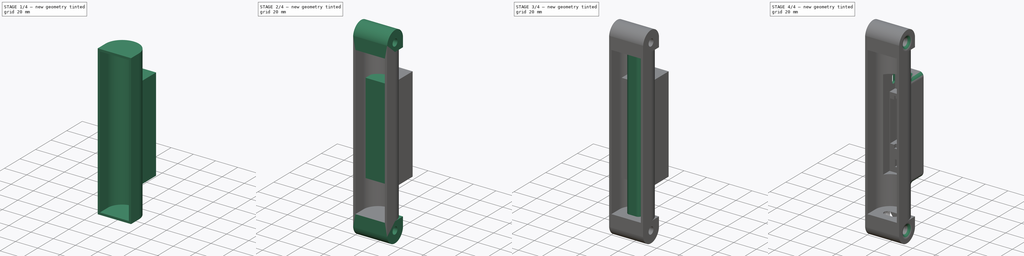
[diagram: build sequence overview — one tinted view per stage of 4, left to right]
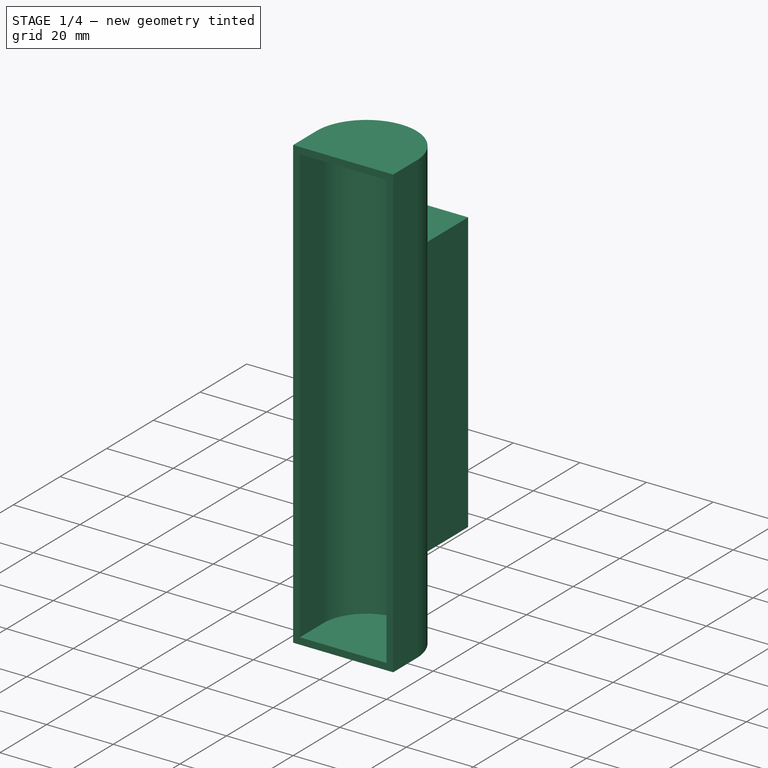
[diagram: stage 1 of 4 — iso view after this stage's code; geometry added in this stage tinted green]
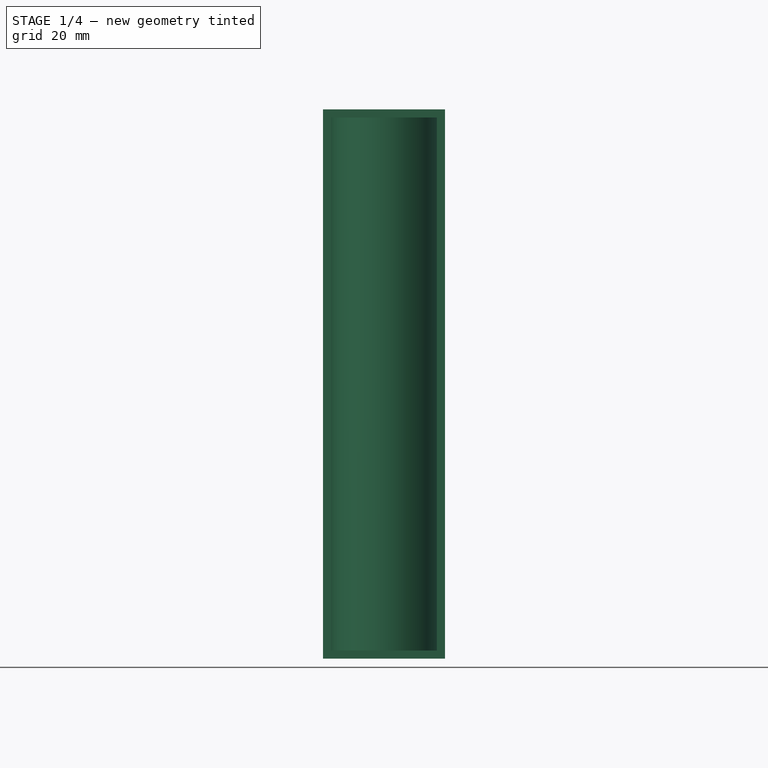
[diagram: stage 1 of 4 — front view after this stage's code; geometry added in this stage tinted green]
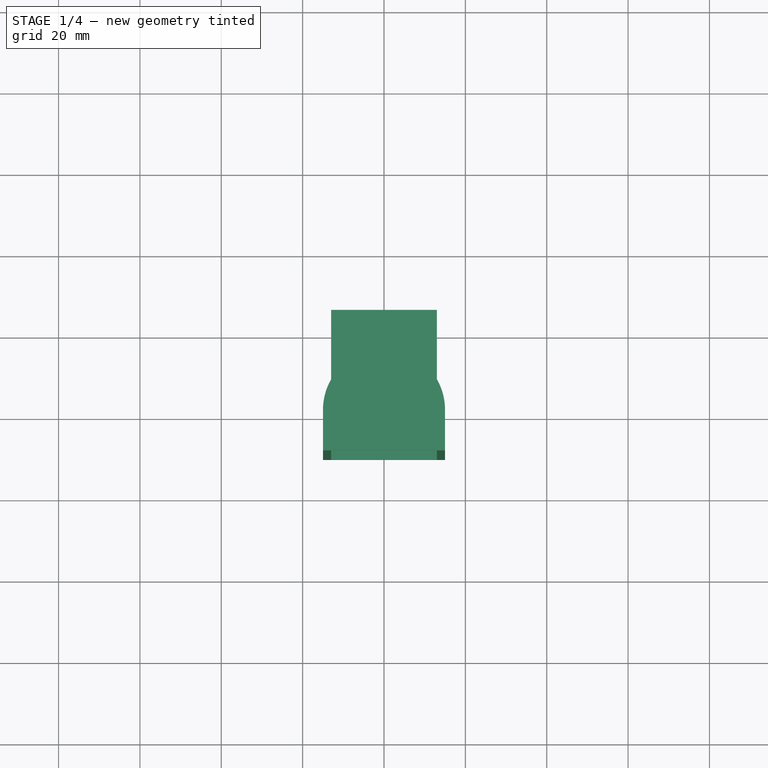
[diagram: stage 1 of 4 — top view after this stage's code; geometry added in this stage tinted green]
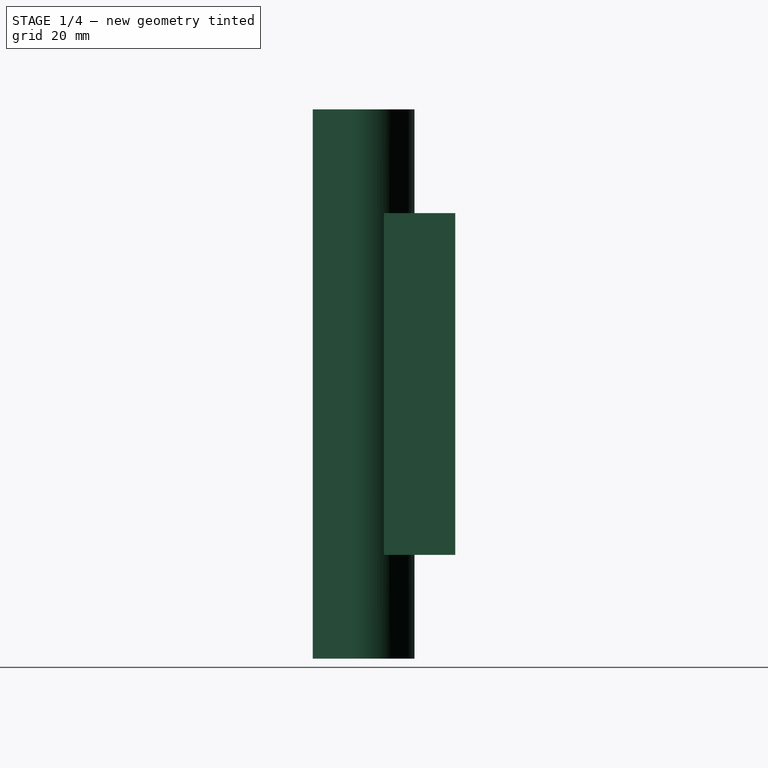
[diagram: stage 1 of 4 — right view after this stage's code; geometry added in this stage tinted green]
FCSTD DOCUMENT  (FreeCAD 0.17R13541 (Git))
Label: LineFollowerCronometro-Illuminatore-r00
License: All rights reserved
LicenseURL: http://en.wikipedia.org/wiki/All_rights_reserved
objects: Sketcher::SketchObject×11, PartDesign::Pad×10, PartDesign::Body×2, Spreadsheet::Sheet×1, PartDesign::Revolution×1, Part::Cut×1, Part::Fillet×1
note: 37 computed .brp shape members not serialized (recipe doc carries the construction recipe); baked Part::Feature solids carry a one-line shape summary decoded from their .brp

FEATURE [PartDesign::Revolution] Revolution  label="IlluminatoreCorpo"
  Angle = 180
  Axis = (0,0,1)
  Base = (0,0,0)
  Placement = pos=(0,0,0) rot=(1,0,0;1.5708rad)
  Profile = -> Sketch001
  ReferenceAxis = -> Sketch001 [V_Axis]
  Refine = true
  Reversed = true
FEATURE [Sketcher::SketchObject] Sketch  label="Rialzo Spalla Base S"
  MapMode = 5
  Placement = pos=(0,0,0) rot=(1,0,0;1.5708rad)
  Support = -> [Revolution]
  expr: Constraints[18] = Spreadsheet.SemicerchioLunghezza
  expr: Constraints[16] = Spreadsheet.SemicerchioSpessorePareti
  expr: Constraints[15] = Spreadsheet.SemicerchioSpessorePareti
  expr: Constraints[17] = Spreadsheet.SemicerchioRaggio * 2
  sketch-geometry (8):
    g0: LineSegment StartX=13 StartY=65.5 StartZ=0 EndX=-13 EndY=65.5 EndZ=0
    g1: LineSegment StartX=-13 StartY=65.5 StartZ=0 EndX=-13 EndY=-65.5 EndZ=0
    g2: LineSegment StartX=-13 StartY=-65.5 StartZ=0 EndX=13 EndY=-65.5 EndZ=0
    g3: LineSegment StartX=13 StartY=-65.5 StartZ=0 EndX=13 EndY=65.5 EndZ=0
    g4: LineSegment StartX=-15 StartY=67.5 StartZ=0 EndX=15 EndY=67.5 EndZ=0
    g5: LineSegment StartX=15 StartY=-67.5 StartZ=0 EndX=-15 EndY=-67.5 EndZ=0
    g6: LineSegment StartX=-15 StartY=67.5 StartZ=0 EndX=-15 EndY=-67.5 EndZ=0
    g7: LineSegment StartX=15 StartY=-67.5 StartZ=0 EndX=15 EndY=67.5 EndZ=0
  constraints (22):
    c: Coincident(g0,g1)
    c: Coincident(g1,g2)
    c: Coincident(g2,g3)
    c: Coincident(g3,g0)
    c: Horizontal(g0)
    c: Horizontal(g2)
    c: Vertical(g1)
    c: Vertical(g3)
    c: Horizontal(g4)
    c: Horizontal(g5)
    c: Coincident(g6,g4)
    c: Coincident(g6,g5)
    c: Coincident(g7,g5)
    c: Coincident(g7,g4)
    c: Vertical(g7)
    c: DistanceY(g0,g4) = 2
    c: DistanceX(g4,g0) = 2
    c: DistanceX(g4,g4) = 30
    c: DistanceY(g6,g6) = 135
    c: Symmetric(g4,g4,g-2)
    c: Symmetric(g1,g2,g-2)
    c: Symmetric(g4,g5,g-1)
FEATURE [PartDesign::Pad] Pad  label="IlluminatoreCorpo001"
  BaseFeature = -> Revolution
  Length = 10
  Length2 = 100
  Placement = pos=(0,0,0) rot=(1,0,0;1.5708rad)
  Profile = -> Sketch
  Refine = true
  Type = 0
  expr: Length = Spreadsheet.SemicerchioAltezzaBase
FEATURE [PartDesign::Pad] Pad001007  label="IlluminatoreCorpo002"
  BaseFeature = -> Pad
  Length = 84
  Length2 = 100
  Midplane = true
  Placement = pos=(0,0,0) rot=(1,0,0;1.5708rad)
  Profile = -> Sketch003
  Refine = true
  Type = 0
  expr: Length = Spreadsheet.TorrettaLunghezza
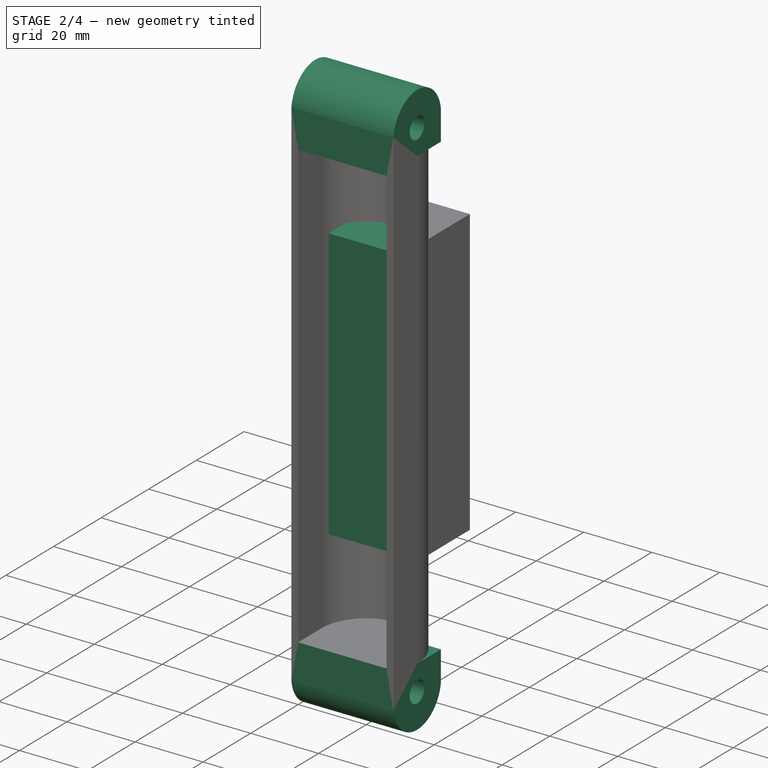
[diagram: stage 2 of 4 — iso view after this stage's code; geometry added in this stage tinted green]
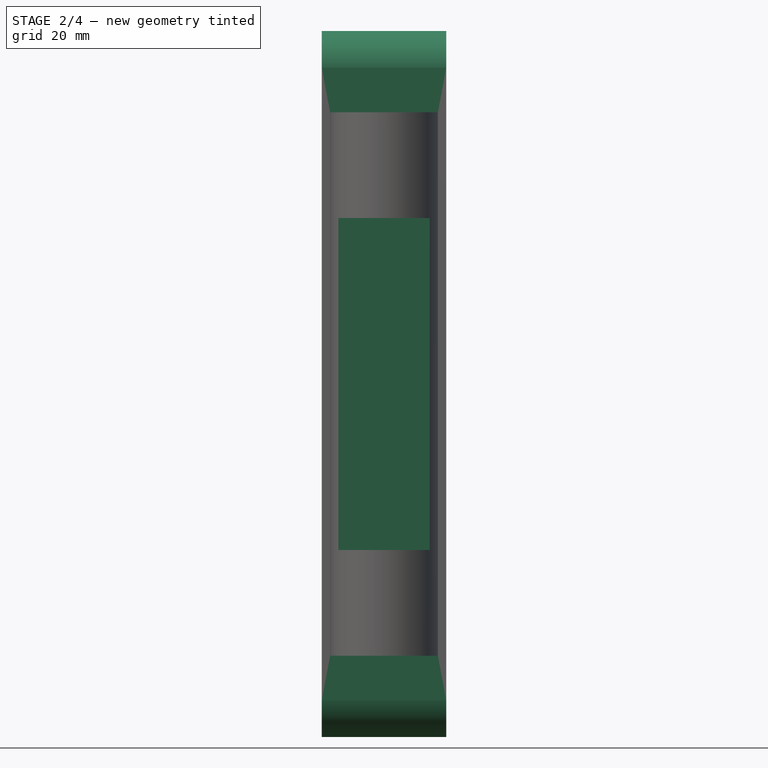
[diagram: stage 2 of 4 — front view after this stage's code; geometry added in this stage tinted green]
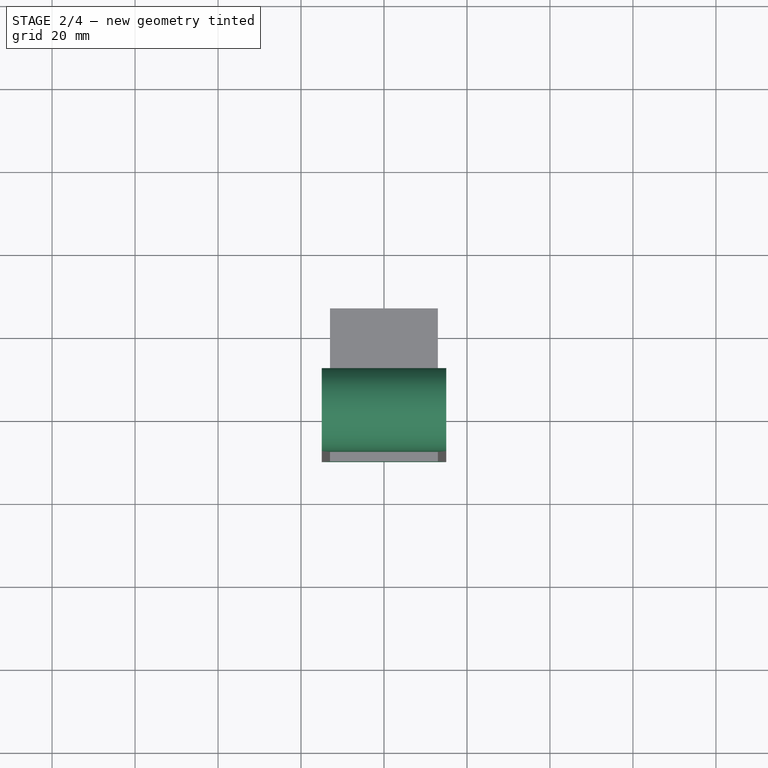
[diagram: stage 2 of 4 — top view after this stage's code; geometry added in this stage tinted green]
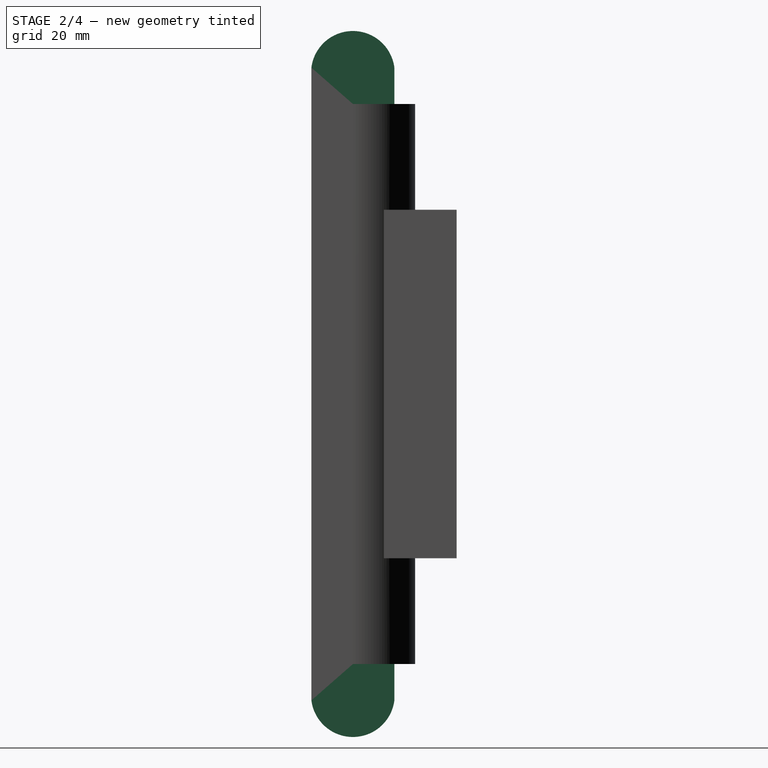
[diagram: stage 2 of 4 — right view after this stage's code; geometry added in this stage tinted green]
FEATURE [Sketcher::SketchObject] Sketch003  label="Pieno Torretta Base S"
  MapMode = 5
  Support = -> [XY_Plane]
  expr: Constraints[14] = Spreadsheet.TorrettaAltezza
  expr: Constraints[9] = Spreadsheet.TorrettaLarghezza
  sketch-geometry (5):
    g0: LineSegment StartX=-13 StartY=25 StartZ=0 EndX=13 EndY=25 EndZ=0
    g1: LineSegment StartX=13 StartY=25 StartZ=0 EndX=13 EndY=0 EndZ=0
    g2: LineSegment StartX=-13 StartY=-3e-12 StartZ=0 EndX=-13 EndY=25 EndZ=0
    g3: ArcOfCircle CenterX=0 CenterY=0 CenterZ=0 NormalX=0 NormalY=0 NormalZ=1 AngleXU=0 Radius=13 StartAngle=0 EndAngle=3.14159
    g4: LineSegment [constr] StartX=0 StartY=25 StartZ=0 EndX=0 EndY=13 EndZ=0
  constraints (16):
    c: Coincident(g0,g1)
    c: Coincident(g2,g0)
    c: Horizontal(g0)
    c: Vertical(g1)
    c: Vertical(g2)
    c: PointOnObject(g1,g-1)
    c: Coincident(g3,g-1)
    c: Coincident(g3,g2)
    c: Coincident(g3,g1)
    c: DistanceX(g0,g0) = 26
    c: PointOnObject(g4,g0)
    c: PointOnObject(g4,g3)
    c: Vertical(g4)
    c: PointOnObject(g4,g-2)
    c: DistanceY(g4,g4) = 12
    c: PointOnObject(g2,g-1)
FEATURE [Sketcher::SketchObject] Sketch004  label="Svuotamento Pieno Torretta Base S"
  MapMode = 5
  Placement = pos=(0,0,0) rot=(1,0,0;1.5708rad)
  Support = -> [XZ_Plane002]
  expr: Constraints[11] = Spreadsheet.TorrettaLarghezza - 2 * Spreadsheet.TorrettaSpessorePareti
  expr: Constraints[10] = Spreadsheet.TorrettaLunghezza - 2 * Spreadsheet.TorrettaSpessorePareti
  sketch-geometry (4):
    g0: LineSegment StartX=-11 StartY=40 StartZ=0 EndX=11 EndY=40 EndZ=0
    g1: LineSegment StartX=11 StartY=40 StartZ=0 EndX=11 EndY=-40 EndZ=0
    g2: LineSegment StartX=11 StartY=-40 StartZ=0 EndX=-11 EndY=-40 EndZ=0
    g3: LineSegment StartX=-11 StartY=-40 StartZ=0 EndX=-11 EndY=40 EndZ=0
  constraints (12):
    c: Coincident(g0,g1)
    c: Coincident(g1,g2)
    c: Coincident(g2,g3)
    c: Coincident(g3,g0)
    c: Horizontal(g0)
    c: Horizontal(g2)
    c: Vertical(g1)
    c: Vertical(g3)
    c: Symmetric(g0,g1,g-1)
    c: Symmetric(g0,g0,g-2)
    c: DistanceY(g3,g3) = 80
    c: DistanceX(g0,g0) = 22
FEATURE [PartDesign::Pad] Pad001004  label="Svuotamento Pieno Torretta Base"
  Length = 15
  Length2 = 100
  Placement = pos=(0,0,0) rot=(1,0,0;1.5708rad)
  Profile = -> Sketch004
  Refine = true
  Reversed = true
  Type = 0
FEATURE [Sketcher::SketchObject] Sketch007  label="PortaLaser S"
  ExternalGeometry = -> [Pad001007]
  MapMode = 5
  Placement = pos=(15,0,0) rot=(0.707107,0,0.707107;3.14159rad)
  Support = -> [Pad001007]
  expr: Constraints[25] = Spreadsheet.InterasseLaser
  expr: Constraints[24] = Spreadsheet.LaserRaggio
  sketch-geometry (10):
    g0: Circle CenterX=75 CenterY=0 CenterZ=0 NormalX=0 NormalY=0 NormalZ=1 AngleXU=0 Radius=3.1
    g1: ArcOfCircle CenterX=75 CenterY=0 CenterZ=0 NormalX=0 NormalY=0 NormalZ=1 AngleXU=0 Radius=10.0781 StartAngle=4.83693 EndAngle=7.72944
    g2: LineSegment StartX=67.5 StartY=10 StartZ=0 EndX=76.2518 EndY=10 EndZ=0
    g3: LineSegment StartX=76.2518 StartY=-10 StartZ=0 EndX=67.5 EndY=-10 EndZ=0
    g4: LineSegment StartX=67.5 StartY=-10 StartZ=0 EndX=67.5 EndY=10 EndZ=0
    g5: Circle CenterX=-75 CenterY=0 CenterZ=0 NormalX=0 NormalY=0 NormalZ=1 AngleXU=0 Radius=3.1
    g6: ArcOfCircle CenterX=-75 CenterY=0 CenterZ=0 NormalX=0 NormalY=0 NormalZ=1 AngleXU=0 Radius=10.0781 StartAngle=1.69533 EndAngle=4.58785
    g7: LineSegment StartX=-67.5 StartY=10 StartZ=0 EndX=-76.2518 EndY=10 EndZ=0
    g8: LineSegment StartX=-76.2518 StartY=-10 StartZ=0 EndX=-67.5 EndY=-10 EndZ=0
    g9: LineSegment StartX=-67.5 StartY=-10 StartZ=0 EndX=-67.5 EndY=10 EndZ=0
  constraints (26):
    c: PointOnObject(g0,g-1)
    c: Coincident(g1,g0)
    c: Coincident(g2,g-3)
    c: Coincident(g2,g1)
    c: Horizontal(g2)
    c: Coincident(g3,g1)
    c: Horizontal(g3)
    c: Coincident(g4,g3)
    c: Coincident(g4,g2)
    c: Vertical(g4)
    c: Coincident(g6,g5)
    c: Coincident(g7,g6)
    c: Horizontal(g7)
    c: Coincident(g8,g6)
    c: Horizontal(g8)
    c: Coincident(g9,g8)
    c: Coincident(g9,g7)
    c: Vertical(g9)
    c: Equal(g7,g8)
    c: Equal(g8,g2)
    c: Equal(g2,g3)
    c: Symmetric(g0,g5,g-2)
    c: Coincident(g7,g-4)
    c: Equal(g5,g0)
    c: Radius(g0) = 3.1
    c: DistanceX(g5,g0) = 150
FEATURE [PartDesign::Pad] Pad001009  label="IlluminatoreCorpo003"
  BaseFeature = -> Pad001007
  Length = 30
  Length2 = 100
  Placement = pos=(0,0,0) rot=(1,0,0;1.5708rad)
  Profile = -> Sketch007
  Refine = true
  Reversed = true
  Type = 0
  expr: Length = Spreadsheet.SemicerchioRaggio * 2
FEATURE [PartDesign::Body] Body002  label="Corpo Svuotamento Torretta"
  Group = -> [Sketch004,Pad001004,Sketch005,Pad001006,Sketch006,Pad001008,Sketch008,Pad001010,Sketch009,Pad001011,Sketch010,Pad001012]
  Origin = -> Origin002
  Tip = -> Pad001012
FEATURE [Sketcher::SketchObject] Sketch011
  MapMode = 5
  Placement = pos=(-15,0,0) rot=(0.707107,0,-0.707107;3.14159rad)
  Support = -> [Pad001009]
  expr: Constraints[3] = Spreadsheet.InterasseLaser
  sketch-geometry (2):
    g0: Circle CenterX=75 CenterY=0 CenterZ=0 NormalX=0 NormalY=0 NormalZ=1 AngleXU=0 Radius=5.50483
    g1: Circle CenterX=-75 CenterY=0 CenterZ=0 NormalX=0 NormalY=0 NormalZ=1 AngleXU=0 Radius=5.42764
  constraints (4):
    c: PointOnObject(g0,g-1)
    c: PointOnObject(g1,g-1)
    c: Symmetric(g1,g0,g-2)
    c: DistanceX(g1,g0) = 150
FEATURE [PartDesign::Pad] Pad001013  label="IlluminatoreCorpo004"
  BaseFeature = -> Pad001009
  Length = 2
  Length2 = 100
  Placement = pos=(0,0,0) rot=(1,0,0;1.5708rad)
  Profile = -> Sketch011
  Refine = true
  Reversed = true
  Type = 0
  expr: Length = Spreadsheet.SemicerchioSpessorePareti
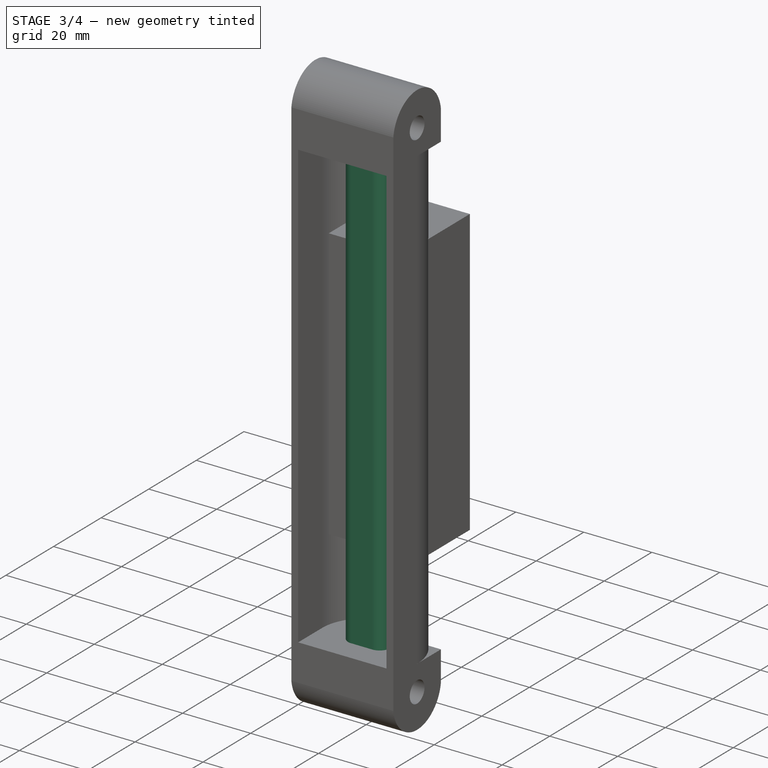
[diagram: stage 3 of 4 — iso view after this stage's code; geometry added in this stage tinted green]
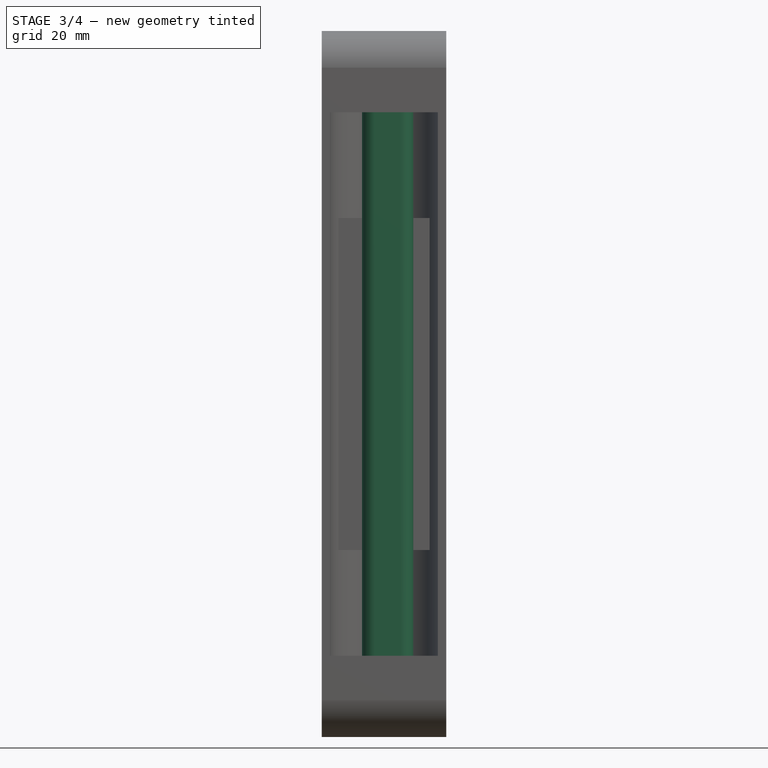
[diagram: stage 3 of 4 — front view after this stage's code; geometry added in this stage tinted green]
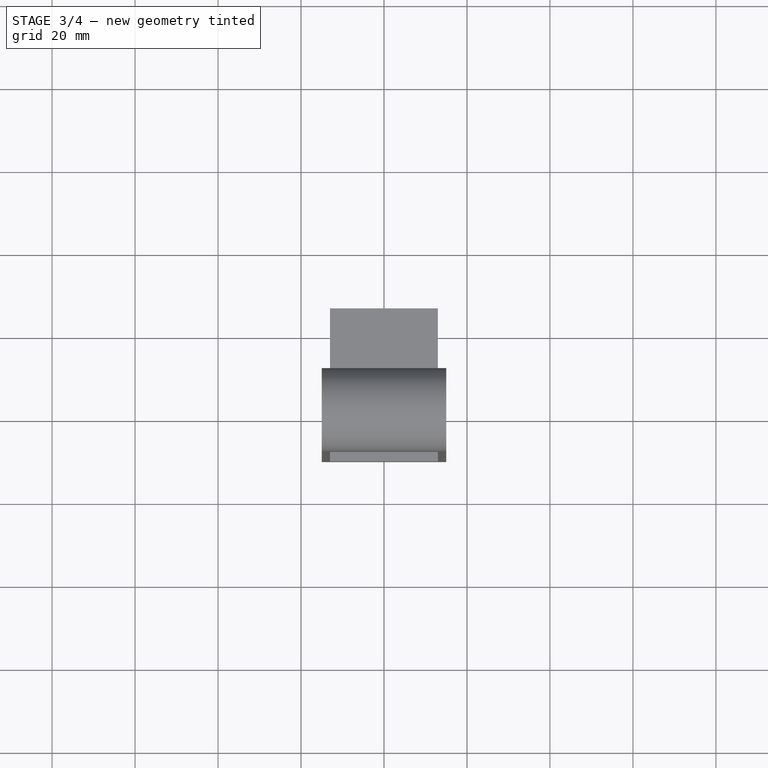
[diagram: stage 3 of 4 — top view after this stage's code; geometry added in this stage tinted green]
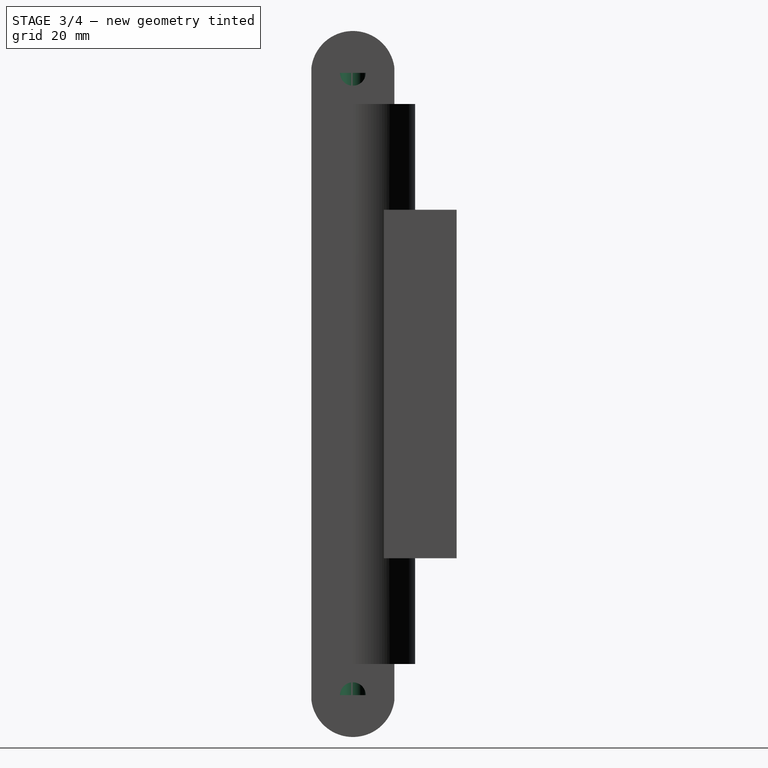
[diagram: stage 3 of 4 — right view after this stage's code; geometry added in this stage tinted green]
FEATURE [Spreadsheet::Sheet] Spreadsheet
  cells = B3=Torretta Lunghezza; C3(TorrettaLunghezza)=84; E3=LASER Raggio; F3(LaserRaggio)=3.1000000000000001; H3=Interruttore Larghezza Slider; I3(IntLargSlid)=3.1000000000000001; B4=Torretta Larghezza; C4(TorrettaLarghezza)==Spreadsheet.SemicerchioRaggio * 2 - Spreadsheet.SemicerchioSpessorePareti * 2; H4=Interruttore Lunghezza Slider; I4(IntLungSlid)=6; B5=Torretta Altezza; C5(TorrettaAltezza)=12; E5=Distanza LASER; F5(InterasseLaser)=150; H5=Interruttore Larghezza; I5(IntLarg)=6; B6=Torretta Spessore Pareti; C6(TorrettaSpessorePareti)=2; H6=Interruttore Lunghezza; I6(IntLung)=12.5; H7=Interruttore Altezza; I7(IntAltezza)=7; B8=Semicerchio Raggio; C8(SemicerchioRaggio)=15; E8=Minitor Batteria Lunghezza display; F8(MonBatDispLunghezza)=36; B9=Semicerchio Lunghezza; C9(SemicerchioLunghezza)=135; E9=Monitor Batteria Larghezza Display; F9(MonBatDispLarghezza)=21; H9=Caricabatterie Larghezza; I9(CarLarg)=17.5; B10=Base Semicerchio Altezza; C10(SemicerchioAltezzaBase)=10; E10=Monitor Batteria Altezza Display; F10(MonBatDispAltezza)=8; H10=Caricabatterie Lunghezza; I10(CarLung)=22; B11=Semicerchio Spessore Pareti; C11(SemicerchioSpessorePareti)=2; E11=Monitor Batteria Lunghezza CS; F11(MonBatDispLungCS)=46; H11=USB Larghezza; I11(USBLarg)=8; E12=Monitor Batteria Larghezza Linghette CS; F12(MonBatDispLargLingCS)=6; H12=USB Altezza; I12(USBAltezza)=3.5; E13=Monitor Batteria Lunghezza Linguette CS; F13(MonBatDispLungLingCS)=2; E14=Monitor Batteria Altezza CS; F14(MonBatDispAltezzaCS)=2
FEATURE [Sketcher::SketchObject] Sketch001  label="Semicilindro Base S"
  MapMode = 5
  Placement = pos=(0,0,0) rot=(1,0,0;1.5708rad)
  Support = -> [XZ_Plane]
  expr: Constraints[17] = Spreadsheet.SemicerchioSpessorePareti
  expr: Constraints[16] = Spreadsheet.SemicerchioSpessorePareti
  expr: Constraints[21] = Spreadsheet.SemicerchioLunghezza
  expr: Constraints[20] = Spreadsheet.SemicerchioRaggio
  sketch-geometry (8):
    g0: LineSegment StartX=-13 StartY=65.5 StartZ=0 EndX=0 EndY=65.5 EndZ=0
    g1: LineSegment StartX=0 StartY=-65.5 StartZ=0 EndX=-13 EndY=-65.5 EndZ=0
    g2: LineSegment StartX=-13 StartY=-65.5 StartZ=0 EndX=-13 EndY=65.5 EndZ=0
    g3: LineSegment StartX=-15 StartY=67.5 StartZ=0 EndX=0 EndY=67.5 EndZ=0
    g4: LineSegment StartX=0 StartY=67.5 StartZ=0 EndX=0 EndY=65.5 EndZ=0
    g5: LineSegment StartX=0 StartY=-67.5 StartZ=0 EndX=-15 EndY=-67.5 EndZ=0
    g6: LineSegment StartX=-15 StartY=-67.5 StartZ=0 EndX=-15 EndY=67.5 EndZ=0
    g7: LineSegment StartX=0 StartY=-65.5 StartZ=0 EndX=0 EndY=-67.5 EndZ=0
  constraints (23):
    c: Coincident(g1,g2)
    c: Coincident(g2,g0)
    c: Horizontal(g0)
    c: Horizontal(g1)
    c: Vertical(g2)
    c: Coincident(g3,g4)
    c: Coincident(g7,g5)
    c: Coincident(g5,g6)
    c: Coincident(g6,g3)
    c: Horizontal(g3)
    c: Horizontal(g5)
    c: Vertical(g4)
    c: Vertical(g6)
    c: Coincident(g4,g0)
    c: Coincident(g7,g1)
    c: Tangent(g4,g7)
    c: DistanceX(g3,g0) = 2
    c: DistanceY(g0,g3) = 2
    c: Symmetric(g0,g1,g-1)
    c: Symmetric(g5,g3,g-1)
    c: DistanceX(g5,g5) = 15
    c: DistanceY(g6,g6) = 135
    c: PointOnObject(g0,g-2)
FEATURE [Sketcher::SketchObject] Sketch005  label="ForaturaSuperioreTorretta S"
  ExternalGeometry = -> [Pad001004]
  MapMode = 5
  Placement = pos=(0,15,2e-12) rot=(-1,0,0;1.5708rad)
  Support = -> [Pad001004]
  expr: Constraints[23] = Spreadsheet.IntLarg
  expr: Constraints[22] = Spreadsheet.IntLungSlid
  expr: Constraints[21] = Spreadsheet.IntLargSlid
  expr: Constraints[8] = Spreadsheet.MonBatDispLarghezza
  expr: Constraints[10] = Spreadsheet.MonBatDispLunghezza
  sketch-geometry (8):
    g0: LineSegment StartX=-10.5 StartY=18 StartZ=0 EndX=10.5 EndY=18 EndZ=0
    g1: LineSegment StartX=10.5 StartY=18 StartZ=0 EndX=10.5 EndY=-18 EndZ=0
    g2: LineSegment StartX=10.5 StartY=-18 StartZ=0 EndX=-10.5 EndY=-18 EndZ=0
    g3: LineSegment StartX=-10.5 StartY=-18 StartZ=0 EndX=-10.5 EndY=18 EndZ=0
    g4: LineSegment StartX=-3 StartY=34 StartZ=0 EndX=3 EndY=34 EndZ=0
    g5: LineSegment StartX=3 StartY=34 StartZ=0 EndX=3 EndY=30.9 EndZ=0
    g6: LineSegment StartX=3 StartY=30.9 StartZ=0 EndX=-3 EndY=30.9 EndZ=0
    g7: LineSegment StartX=-3 StartY=30.9 StartZ=0 EndX=-3 EndY=34 EndZ=0
  constraints (24):
    c: Coincident(g0,g1)
    c: Coincident(g1,g2)
    c: Coincident(g2,g3)
    c: Coincident(g3,g0)
    c: Horizontal(g0)
    c: Horizontal(g2)
    c: Vertical(g1)
    c: Vertical(g3)
    c: DistanceX(g2,g2) = 21
    c: Symmetric(g2,g1,g-2)
    c: DistanceY(g1,g1) = 36
    c: Symmetric(g0,g2,g-1)
    c: Coincident(g4,g5)
    c: Coincident(g5,g6)
    c: Coincident(g6,g7)
    c: Coincident(g7,g4)
    c: Horizontal(g4)
    c: Horizontal(g6)
    c: Vertical(g5)
    c: Vertical(g7)
    c: Symmetric(g4,g4,g-2)
    c: DistanceY(g5,g5) = 3.1
    c: DistanceX(g4,g4) = 6
    c: DistanceY(g4,g-3) = 6
FEATURE [PartDesign::Pad] Pad001006  label="Svuotamento Pieno Torretta Base001"
  BaseFeature = -> Pad001004
  Length = 10
  Length2 = 100
  Placement = pos=(0,0,0) rot=(1,0,0;1.5708rad)
  Profile = -> Sketch005
  Refine = true
  Type = 0
  expr: Length = Spreadsheet.MonBatDispAltezza + Spreadsheet.MonBatDispAltezzaCS
FEATURE [Sketcher::SketchObject] Sketch006
  MapMode = 5
  Placement = pos=(0,15,2e-12) rot=(-1,0,0;1.5708rad)
  Support = -> [Pad001006]
  expr: Constraints[27] = Spreadsheet.MonBatDispLungLingCS
  expr: Constraints[35] = Spreadsheet.MonBatDispLargLingCS
  expr: Constraints[36] = Spreadsheet.MonBatDispLungCS - 2 * Spreadsheet.MonBatDispLungLingCS
  sketch-geometry (12):
    g0: LineSegment StartX=-6.8774 StartY=21 StartZ=0 EndX=-3 EndY=21 EndZ=0
    g1: LineSegment StartX=6.8774 StartY=21 StartZ=0 EndX=6.8774 EndY=-21 EndZ=0
    g2: LineSegment StartX=6.8774 StartY=-21 StartZ=0 EndX=3 EndY=-21 EndZ=0
    g3: LineSegment StartX=-6.8774 StartY=-21 StartZ=0 EndX=-6.8774 EndY=21 EndZ=0
    g4: LineSegment StartX=3 StartY=-21 StartZ=0 EndX=3 EndY=-23 EndZ=0
    g5: LineSegment StartX=3 StartY=-23 StartZ=0 EndX=-3 EndY=-23 EndZ=0
    g6: LineSegment StartX=-3 StartY=-23 StartZ=0 EndX=-3 EndY=-21 EndZ=0
    g7: LineSegment StartX=-3 StartY=23 StartZ=0 EndX=3 EndY=23 EndZ=0
    g8: LineSegment StartX=3 StartY=23 StartZ=0 EndX=3 EndY=21 EndZ=0
    g9: LineSegment StartX=-3 StartY=21 StartZ=0 EndX=-3 EndY=23 EndZ=0
    g10: LineSegment StartX=3 StartY=21 StartZ=0 EndX=6.8774 EndY=21 EndZ=0
    g11: LineSegment StartX=-3 StartY=-21 StartZ=0 EndX=-6.8774 EndY=-21 EndZ=0
  constraints (37):
    c: Coincident(g10,g1)
    c: Coincident(g1,g2)
    c: Coincident(g11,g3)
    c: Coincident(g3,g0)
    c: Horizontal(g0)
    c: Horizontal(g2)
    c: Vertical(g1)
    c: Vertical(g3)
    c: Coincident(g4,g5)
    c: Coincident(g5,g6)
    c: Horizontal(g5)
    c: Vertical(g4)
    c: Vertical(g6)
    c: PointOnObject(g6,g2)
    c: Coincident(g7,g8)
    c: Coincident(g9,g7)
    c: Horizontal(g7)
    c: Vertical(g8)
    c: Vertical(g9)
    c: PointOnObject(g0,g9)
    c: Coincident(g10,g8)
    c: Tangent(g0,g10)
    c: PointOnObject(g2,g4)
    c: PointOnObject(g11,g6)
    c: Tangent(g2,g11)
    c: Symmetric(g0,g1,g-2)
    c: Symmetric(g5,g4,g-2)
    c: DistanceY(g4,g4) = 2
    c: Coincident(g4,g2)
    c: Equal(g8,g4)
    c: Coincident(g0,g9)
    c: Symmetric(g1,g1,g-1)
    c: Equal(g4,g8)
    c: Equal(g10,g0)
    c: Equal(g0,g11)
    c: DistanceX(g5,g5) = 6
    c: DistanceY(g3,g0) = 42
FEATURE [PartDesign::Pad] Pad001008  label="Svuotamento Pieno Torretta Base002"
  BaseFeature = -> Pad001006
  Length = 2
  Length2 = 100
  Placement = pos=(0,0,0) rot=(1,0,0;1.5708rad)
  Profile = -> Sketch006
  Refine = true
  Type = 0
  expr: Length = Spreadsheet.MonBatDispAltezzaCS
FEATURE [Sketcher::SketchObject] Sketch008  label="Foro Comunicazione LASER S"
  MapMode = 5
  Support = -> [XY_Plane002]
  expr: Constraints[8] = Spreadsheet.LaserRaggio
  expr: Constraints[7] = Spreadsheet.LaserRaggio * 2
  sketch-geometry (4):
    g0: ArcOfCircle CenterX=-2.21682 CenterY=0 CenterZ=0 NormalX=0 NormalY=0 NormalZ=1 AngleXU=0 Radius=3.1 StartAngle=1.5708 EndAngle=4.71239
    g1: ArcOfCircle CenterX=3.98318 CenterY=0 CenterZ=0 NormalX=0 NormalY=0 NormalZ=1 AngleXU=0 Radius=3.1 StartAngle=4.71239 EndAngle=7.85398
    g2: LineSegment StartX=-2.21682 StartY=-3.1 StartZ=0 EndX=3.98318 EndY=-3.1 EndZ=0
    g3: LineSegment StartX=-2.21682 StartY=3.1 StartZ=0 EndX=3.98318 EndY=3.1 EndZ=0
  constraints (9):
    c: Tangent(g0,g3) = 1.5708
    c: Tangent(g0,g2) = -1.5708
    c: Tangent(g2,g1) = -1.5708
    c: Tangent(g3,g1) = 1.5708
    c: Horizontal(g2)
    c: Equal(g0,g1)
    c: PointOnObject(g0,g-1)
    c: DistanceX(g0,g1) = 6.2
    c: Radius(g1) = 3.1
FEATURE [PartDesign::Pad] Pad001010  label="Svuotamento Pieno Torretta Base003"
  BaseFeature = -> Pad001008
  Length = 150
  Length2 = 100
  Midplane = true
  Placement = pos=(0,0,0) rot=(1,0,0;1.5708rad)
  Profile = -> Sketch008
  Refine = true
  Type = 0
  expr: Length = Spreadsheet.InterasseLaser
FEATURE [Sketcher::SketchObject] Sketch009  label="Corpo Interruttore S"
  ExternalGeometry = -> [Pad001010]
  MapMode = 5
  Placement = pos=(0,15,2e-12) rot=(-1,0,0;1.5708rad)
  Support = -> [Pad001010]
  expr: Constraints[11] = (Spreadsheet.IntLarg - Spreadsheet.IntLargSlid) / 2
  expr: Constraints[9] = Spreadsheet.IntLung
  expr: Constraints[8] = Spreadsheet.IntLarg
  sketch-geometry (8):
    g0: LineSegment StartX=-6.25 StartY=35.45 StartZ=0 EndX=6.25 EndY=35.45 EndZ=0
    g1: LineSegment StartX=6.25 StartY=35.45 StartZ=0 EndX=6.25 EndY=29.45 EndZ=0
    g2: LineSegment StartX=6.25 StartY=29.45 StartZ=0 EndX=-6.25 EndY=29.45 EndZ=0
    g3: LineSegment StartX=-6.25 StartY=29.45 StartZ=0 EndX=-6.25 EndY=35.45 EndZ=0
    g4: LineSegment StartX=-11 StartY=-23.1716 StartZ=0 EndX=11 EndY=-23.1716 EndZ=0
    g5: LineSegment StartX=11 StartY=-23.1716 StartZ=0 EndX=11 EndY=-40.1716 EndZ=0
    g6: LineSegment StartX=11 StartY=-40.1716 StartZ=0 EndX=-11 EndY=-40.1716 EndZ=0
    g7: LineSegment StartX=-11 StartY=-40.1716 StartZ=0 EndX=-11 EndY=-23.1716 EndZ=0
  constraints (23):
    c: Coincident(g0,g1)
    c: Coincident(g1,g2)
    c: Coincident(g2,g3)
    c: Coincident(g3,g0)
    c: Horizontal(g0)
    c: Horizontal(g2)
    c: Vertical(g1)
    c: Vertical(g3)
    c: DistanceY(g1,g1) = 6
    c: DistanceX(g0,g0) = 12.5
    c: Symmetric(g0,g0,g-2)
    c: DistanceY(g1,g-3) = 1.45
    c: Coincident(g4,g5)
    c: Coincident(g5,g6)
    c: Coincident(g6,g7)
    c: Coincident(g7,g4)
    c: Horizontal(g4)
    c: Horizontal(g6)
    c: Vertical(g5)
    c: Vertical(g7)
    c: Symmetric(g5,g6,g-2)
    c: DistanceX(g6,g6) = 22
    c: DistanceY(g5,g5) = 17
FEATURE [PartDesign::Pad] Pad001011  label="Svuotamento Pieno Torretta Base004"
  BaseFeature = -> Pad001010
  Length = 7
  Length2 = 100
  Placement = pos=(0,0,0) rot=(1,0,0;1.5708rad)
  Profile = -> Sketch009
  Refine = true
  Type = 0
  expr: Length = Spreadsheet.IntAltezza
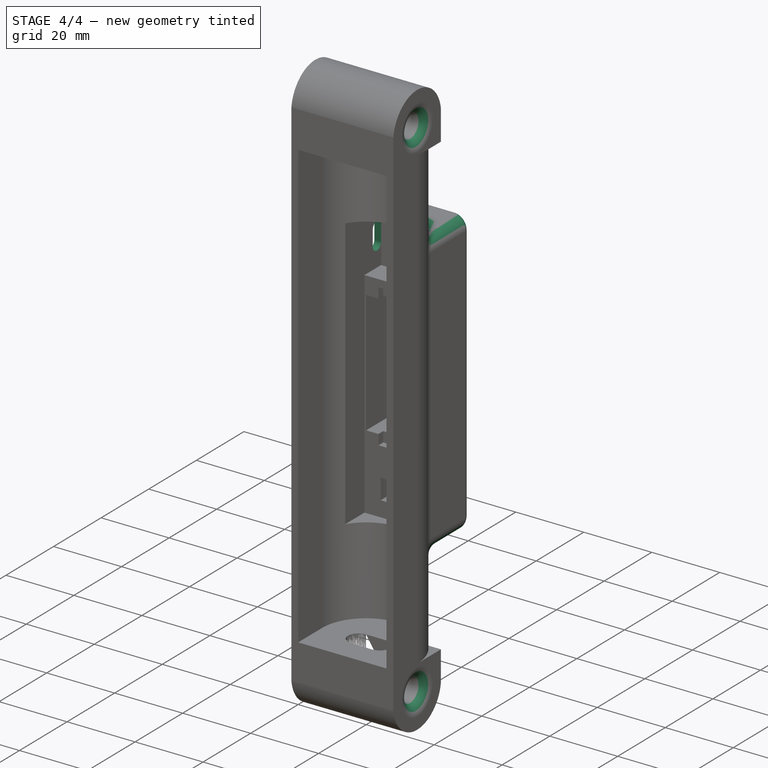
[diagram: stage 4 of 4 — iso view after this stage's code; geometry added in this stage tinted green]
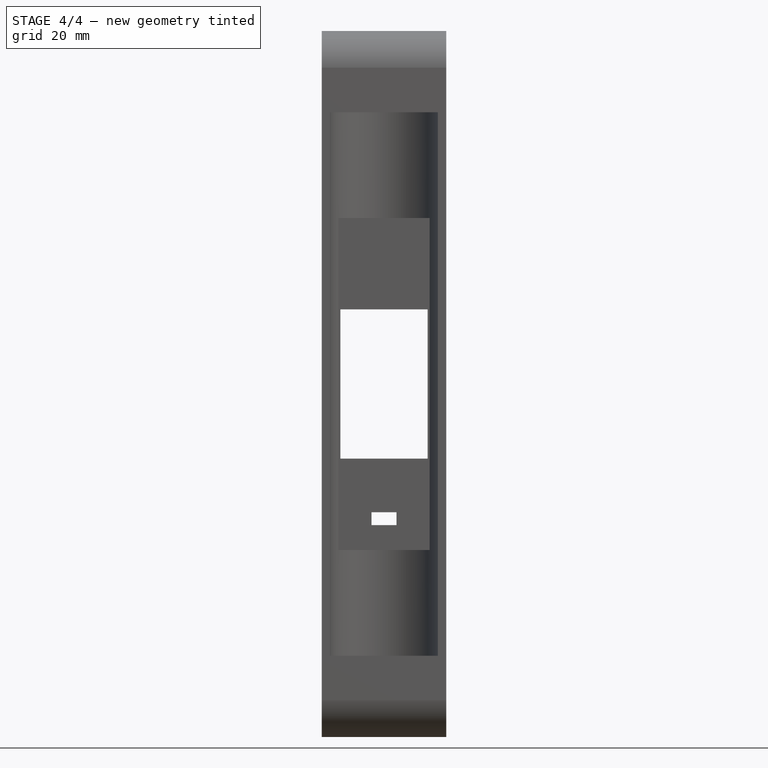
[diagram: stage 4 of 4 — front view after this stage's code; geometry added in this stage tinted green]
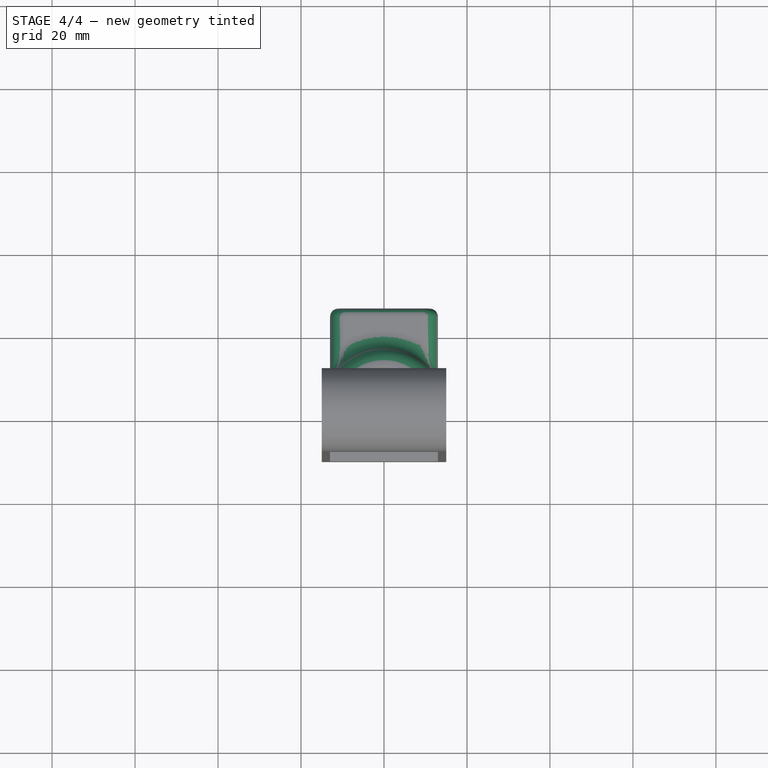
[diagram: stage 4 of 4 — top view after this stage's code; geometry added in this stage tinted green]
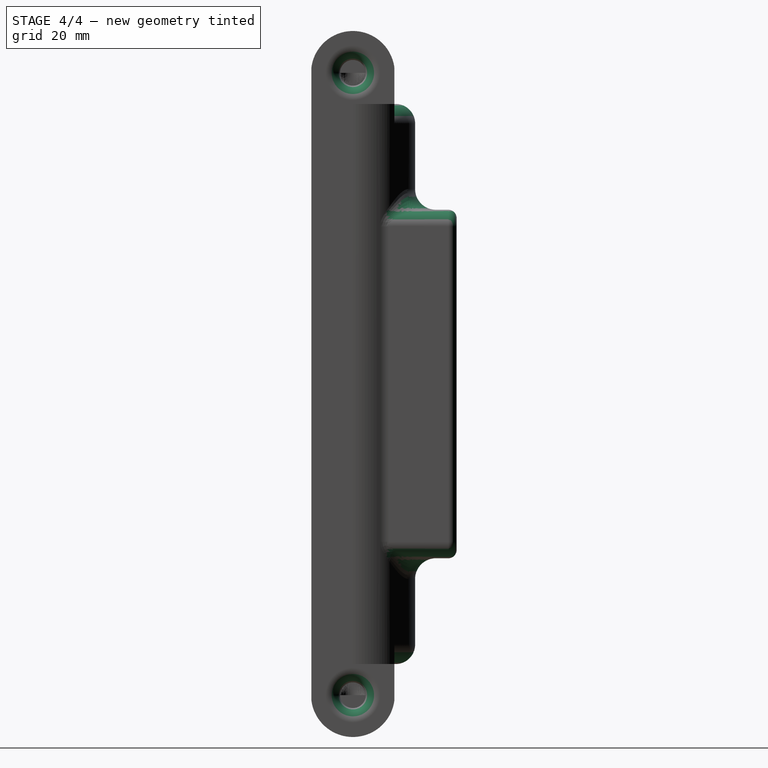
[diagram: stage 4 of 4 — right view after this stage's code; geometry added in this stage tinted green]
FEATURE [Sketcher::SketchObject] Sketch010  label="USB S"
  ExternalGeometry = -> [Pad001011]
  MapMode = 5
  Placement = pos=(-11,0,0) rot=(-0.707107,0,0.707107;3.14159rad)
  Support = -> [Pad001011]
  expr: Constraints[15] = Spreadsheet.USBLarg - Spreadsheet.USBAltezza
  expr: Constraints[12] = Spreadsheet.USBAltezza
  sketch-geometry (6):
    g0: LineSegment [constr] StartX=-40.1716 StartY=-22 StartZ=0 EndX=-31.6716 EndY=-22 EndZ=0
    g1: LineSegment [constr] StartX=-31.6716 StartY=-22 StartZ=0 EndX=-23.1716 EndY=-22 EndZ=0
    g2: ArcOfCircle CenterX=-33.9216 CenterY=-20.25 CenterZ=0 NormalX=0 NormalY=0 NormalZ=1 AngleXU=0 Radius=1.75 StartAngle=1.5708 EndAngle=4.71239
    g3: ArcOfCircle CenterX=-29.4216 CenterY=-20.25 CenterZ=0 NormalX=0 NormalY=0 NormalZ=1 AngleXU=0 Radius=1.75 StartAngle=4.71239 EndAngle=7.85398
    g4: LineSegment StartX=-33.9216 StartY=-22 StartZ=0 EndX=-29.4216 EndY=-22 EndZ=0
    g5: LineSegment StartX=-33.9216 StartY=-18.5 StartZ=0 EndX=-29.4216 EndY=-18.5 EndZ=0
  constraints (16):
    c: Coincident(g0,g-4)
    c: Horizontal(g0)
    c: Coincident(g1,g0)
    c: Coincident(g1,g-3)
    c: Equal(g1,g0)
    c: Tangent(g2,g5) = 1.5708
    c: Tangent(g2,g4) = -1.5708
    c: Tangent(g4,g3) = -1.5708
    c: Tangent(g5,g3) = 1.5708
    c: Horizontal(g4)
    c: Equal(g2,g3)
    c: PointOnObject(g3,g1)
    c: DistanceY(g3,g3) = 3.5
    c: Symmetric(g3,g2,g0)
    c: Equal(g5,g4)
    c: DistanceX(g5,g5) = 4.5
FEATURE [PartDesign::Pad] Pad001012  label="Svuotamento Pieno Torretta Base005"
  BaseFeature = -> Pad001011
  Length = 10
  Length2 = 100
  Placement = pos=(0,0,0) rot=(1,0,0;1.5708rad)
  Profile = -> Sketch010
  Refine = true
  Type = 0
FEATURE [PartDesign::Body] Body  label="Illuminatore-Corpo"
  Group = -> [Sketch001,Sketch,Sketch003,Revolution,Pad,Pad001007,Sketch007,Pad001009,Sketch011,Pad001013]
  Origin = -> Origin
  Tip = -> Pad001013
FEATURE [Part::Cut] Cut  label="Illuminatore"
  Base = -> Body
  Refine = true
  Tool = -> Body002
FEATURE [Part::Fillet] Fillet
  Base = -> Cut
  Edges = 16 edges: [Edge22 r=3.5,Edge23 r=3.5,Edge31 r=4.7,Edge50 r=4.7,Edge52 r=5,Edge53 r=5,Edge54 r=5,Edge55 r=5,Edge90 r=4,Edge91 r=4,Edge92 r=2,Edge93 r=4,Edge94 r=2,Edge95 r=4,Edge96 r=2,Edge97 r=2]
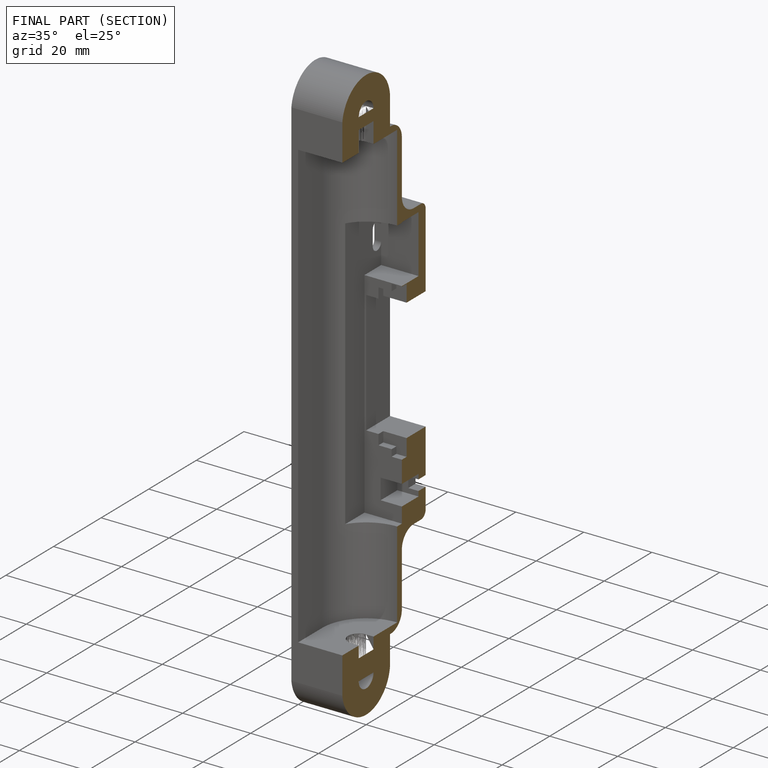
[diagram: finished part — half-section view (interior)]
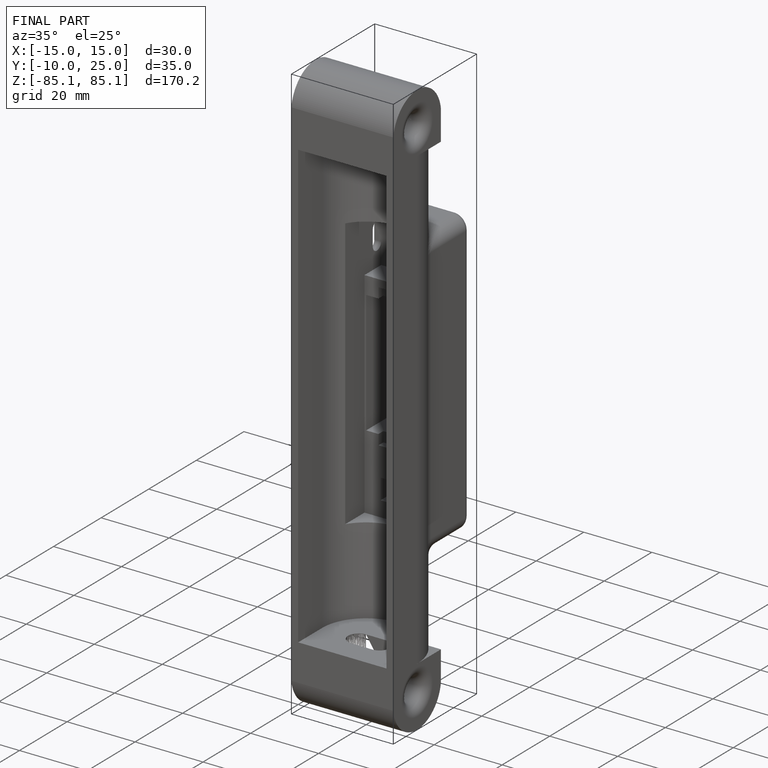
[diagram: finished part — iso view with bounding-box wireframe]
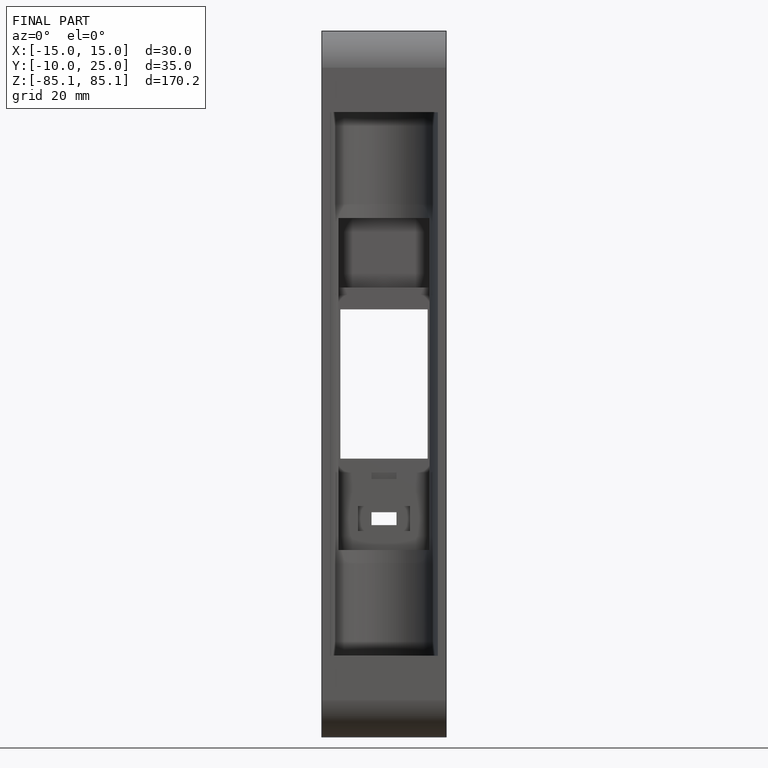
[diagram: finished part — front view with bounding-box wireframe]
